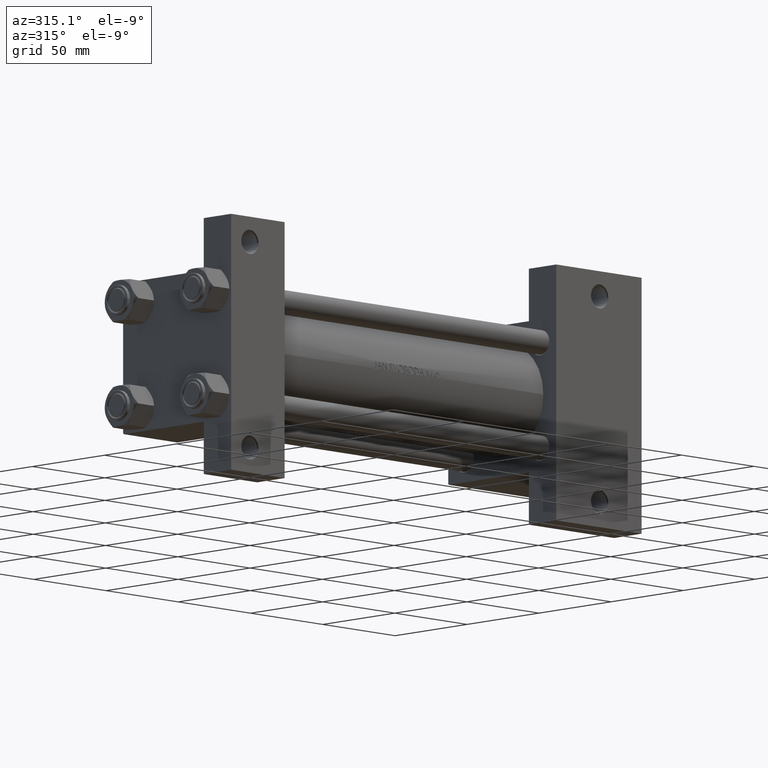
[diagram: clean part render]
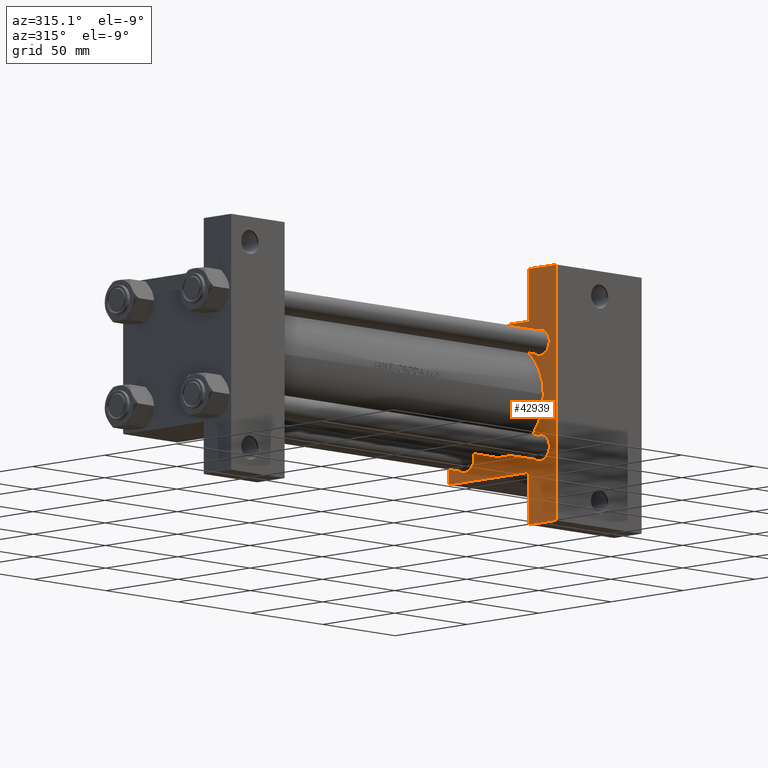
[diagram: same view with one face highlighted and labeled with its STEP entity id]
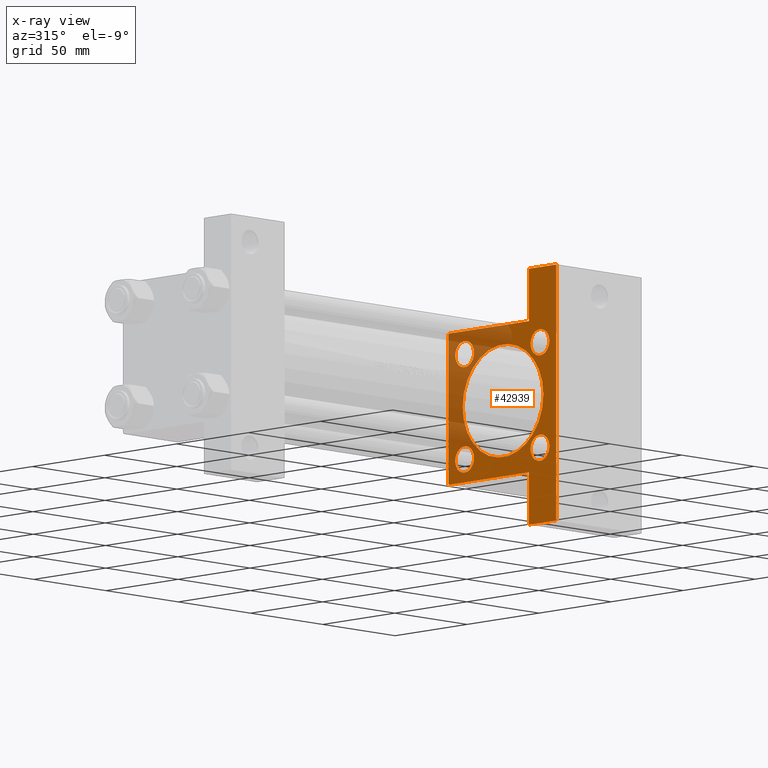
[diagram: x-ray of the same camera — body ghosted, the highlighted face saturated]
A machine part, auxiliary view. The second image highlights one B-rep face of the part: STEP entity #42939.
The next image is the same camera in x-ray: the body ghosted, the highlighted face saturated — about 27% of this face is hidden behind the body in this view.
In plain terms, the highlighted planar face has unit normal (-1, 0, 0).
Its self-contained STEP definition (entity closure, byte-faithful):
#875 = EDGE_CURVE ( 'NONE', #13380, #30213, #30874, .T. ) ;
#907 = AXIS2_PLACEMENT_3D ( 'NONE', #43818, #9851, #20264 ) ;
#1112 = CIRCLE ( 'NONE', #25695, 28.00000000000000000 ) ;
#1376 = VECTOR ( 'NONE', #14541, 1000.000000000000000 ) ;
#1690 = EDGE_LOOP ( 'NONE', ( #8330, #7272 ) ) ;
#2115 = CARTESIAN_POINT ( 'NONE',  ( 225.0000000000000000, 3.429011037612589276E-15, -28.50000000000000000 ) ) ;
#2484 = DIRECTION ( 'NONE',  ( 0.000000000000000000, -9.251858538542972814E-17, -1.000000000000000000 ) ) ;
#2498 = CIRCLE ( 'NONE', #907, 6.500000000000008882 ) ;
#2971 = CARTESIAN_POINT ( 'NONE',  ( 225.0000000000000000, 37.50000000000000000, 36.99999999999993605 ) ) ;
#2986 = VERTEX_POINT ( 'NONE', #46134 ) ;
#3007 = VERTEX_POINT ( 'NONE', #39443 ) ;
#3446 = EDGE_LOOP ( 'NONE', ( #42923, #11962 ) ) ;
#3787 = VECTOR ( 'NONE', #43563, 1000.000000000000000 ) ;
#4194 = EDGE_CURVE ( 'NONE', #29023, #44860, #2498, .T. ) ;
#4255 = DIRECTION ( 'NONE',  ( 1.000000000000000000, 0.000000000000000000, -0.000000000000000000 ) ) ;
#4349 = FACE_BOUND ( 'NONE', #1690, .T. ) ;
#4368 = ORIENTED_EDGE ( 'NONE', *, *, #28564, .T. ) ;
#4664 = CARTESIAN_POINT ( 'NONE',  ( 225.0000000000000000, 26.14999999999999858, -32.65000000000001279 ) ) ;
#5219 = CARTESIAN_POINT ( 'NONE',  ( 225.0000000000000000, -63.50000000000002842, -18.50000000000000000 ) ) ;
#5259 = CARTESIAN_POINT ( 'NONE',  ( 225.0000000000000000, -26.14999999999999147, 26.15000000000000924 ) ) ;
#5419 = EDGE_CURVE ( 'NONE', #2986, #6943, #39732, .T. ) ;
#6075 = AXIS2_PLACEMENT_3D ( 'NONE', #8445, #20081, #7952 ) ;
#6300 = AXIS2_PLACEMENT_3D ( 'NONE', #39633, #23516, #24250 ) ;
#6852 = VECTOR ( 'NONE', #42466, 1000.000000000000000 ) ;
#6894 = CARTESIAN_POINT ( 'NONE',  ( 225.0000000000000000, -37.50000000000000000, 36.99999999999995026 ) ) ;
#6943 = VERTEX_POINT ( 'NONE', #17885 ) ;
#7272 = ORIENTED_EDGE ( 'NONE', *, *, #4194, .T. ) ;
#7952 = DIRECTION ( 'NONE',  ( 0.000000000000000000, 0.000000000000000000, 1.000000000000000000 ) ) ;
#8326 = ORIENTED_EDGE ( 'NONE', *, *, #28071, .T. ) ;
#8330 = ORIENTED_EDGE ( 'NONE', *, *, #39391, .T. ) ;
#8445 = CARTESIAN_POINT ( 'NONE',  ( 225.0000000000000000, 26.14999999999999858, -26.15000000000000213 ) ) ;
#9026 = VERTEX_POINT ( 'NONE', #6894 ) ;
#9218 = VERTEX_POINT ( 'NONE', #34769 ) ;
#9360 = LINE ( 'NONE', #39614, #3787 ) ;
#9627 = DIRECTION ( 'NONE',  ( 1.000000000000000000, 0.000000000000000000, -0.000000000000000000 ) ) ;
#9851 = DIRECTION ( 'NONE',  ( 1.000000000000000000, 0.000000000000000000, -0.000000000000000000 ) ) ;
#9857 = CIRCLE ( 'NONE', #24881, 6.500000000000008882 ) ;
#10549 = AXIS2_PLACEMENT_3D ( 'NONE', #23568, #4255, #37983 ) ;
#10603 = DIRECTION ( 'NONE',  ( 1.000000000000000000, 0.000000000000000000, 0.000000000000000000 ) ) ;
#10786 = CARTESIAN_POINT ( 'NONE',  ( 225.0000000000000000, -63.50000000000002842, -18.50000000000000000 ) ) ;
#11962 = ORIENTED_EDGE ( 'NONE', *, *, #31559, .T. ) ;
#12401 = CARTESIAN_POINT ( 'NONE',  ( 225.0000000000000000, -36.99999999999997158, 37.49999999999997868 ) ) ;
#12481 = AXIS2_PLACEMENT_3D ( 'NONE', #37391, #10603, #24558 ) ;
#12824 = ORIENTED_EDGE ( 'NONE', *, *, #14911, .T. ) ;
#12888 = DIRECTION ( 'NONE',  ( -0.000000000000000000, 1.000000000000000000, -0.000000000000000000 ) ) ;
#13062 = CARTESIAN_POINT ( 'NONE',  ( 225.0000000000000000, 26.14999999999999858, -19.64999999999999503 ) ) ;
#13070 = EDGE_LOOP ( 'NONE', ( #48309, #12824 ) ) ;
#13380 = VERTEX_POINT ( 'NONE', #48942 ) ;
#13735 = EDGE_CURVE ( 'NONE', #6943, #2986, #31938, .T. ) ;
#14407 = LINE ( 'NONE', #40729, #34332 ) ;
#14541 = DIRECTION ( 'NONE',  ( 0.000000000000000000, 0.000000000000000000, -1.000000000000000000 ) ) ;
#14627 = ORIENTED_EDGE ( 'NONE', *, *, #875, .T. ) ;
#14911 = EDGE_CURVE ( 'NONE', #35921, #36636, #1112, .T. ) ;
#14971 = DIRECTION ( 'NONE',  ( 1.000000000000000000, 0.000000000000000000, -0.000000000000000000 ) ) ;
#14979 = FACE_BOUND ( 'NONE', #48711, .T. ) ;
#15235 = VERTEX_POINT ( 'NONE', #2971 ) ;
#15239 = LINE ( 'NONE', #15719, #39136 ) ;
#15403 = ORIENTED_EDGE ( 'NONE', *, *, #40790, .T. ) ;
#15567 = EDGE_CURVE ( 'NONE', #30213, #13380, #9857, .T. ) ;
#15702 = ORIENTED_EDGE ( 'NONE', *, *, #39801, .T. ) ;
#15719 = CARTESIAN_POINT ( 'NONE',  ( 225.0000000000000000, 37.24999999999996447, 37.24999999999996447 ) ) ;
#16355 = CARTESIAN_POINT ( 'NONE',  ( 225.0000000000000284, 63.50000000000000000, -18.50000000000000000 ) ) ;
#16719 = CARTESIAN_POINT ( 'NONE',  ( 225.0000000000000000, 0.000000000000000000, -0.5000000000000004441 ) ) ;
#16845 = LINE ( 'NONE', #35968, #17878 ) ;
#17448 = DIRECTION ( 'NONE',  ( 0.000000000000000000, 0.000000000000000000, -1.000000000000000000 ) ) ;
#17532 = EDGE_CURVE ( 'NONE', #39577, #9218, #46426, .T. ) ;
#17693 = LINE ( 'NONE', #32841, #43786 ) ;
#17878 = VECTOR ( 'NONE', #2484, 1000.000000000000000 ) ;
#17885 = CARTESIAN_POINT ( 'NONE',  ( 225.0000000000000000, -26.14999999999999147, -32.65000000000002700 ) ) ;
#18123 = DIRECTION ( 'NONE',  ( 0.000000000000000000, 1.000000000000000000, 0.000000000000000000 ) ) ;
#18451 = EDGE_LOOP ( 'NONE', ( #20278, #38785 ) ) ;
#18833 = EDGE_CURVE ( 'NONE', #37337, #38254, #27672, .T. ) ;
#18929 = DIRECTION ( 'NONE',  ( 0.000000000000000000, 0.000000000000000000, 1.000000000000000000 ) ) ;
#18956 = FACE_OUTER_BOUND ( 'NONE', #44848, .T. ) ;
#20041 = ORIENTED_EDGE ( 'NONE', *, *, #15567, .T. ) ;
#20081 = DIRECTION ( 'NONE',  ( 1.000000000000000000, 0.000000000000000000, -0.000000000000000000 ) ) ;
#20264 = DIRECTION ( 'NONE',  ( 0.000000000000000000, 0.000000000000000000, 1.000000000000000000 ) ) ;
#20278 = ORIENTED_EDGE ( 'NONE', *, *, #5419, .T. ) ;
#20870 = AXIS2_PLACEMENT_3D ( 'NONE', #34088, #14971, #29371 ) ;
#21010 = CARTESIAN_POINT ( 'NONE',  ( 225.0000000000000000, -37.24999999999997158, 37.24999999999997158 ) ) ;
#22379 = VERTEX_POINT ( 'NONE', #38587 ) ;
#22688 = FACE_BOUND ( 'NONE', #3446, .T. ) ;
#22928 = DIRECTION ( 'NONE',  ( -1.000000000000000000, -0.000000000000000000, 0.000000000000000000 ) ) ;
#23179 = FACE_BOUND ( 'NONE', #18451, .T. ) ;
#23516 = DIRECTION ( 'NONE',  ( 1.000000000000000000, 0.000000000000000000, -0.000000000000000000 ) ) ;
#23568 = CARTESIAN_POINT ( 'NONE',  ( 225.0000000000000000, -26.14999999999999147, -26.15000000000000924 ) ) ;
#23901 = AXIS2_PLACEMENT_3D ( 'NONE', #41519, #45480, #18929 ) ;
#24153 = VERTEX_POINT ( 'NONE', #39901 ) ;
#24250 = DIRECTION ( 'NONE',  ( 0.000000000000000000, 0.000000000000000000, 1.000000000000000000 ) ) ;
#24541 = LINE ( 'NONE', #16355, #43858 ) ;
#24558 = DIRECTION ( 'NONE',  ( 0.000000000000000000, 0.000000000000000000, -1.000000000000000000 ) ) ;
#24881 = AXIS2_PLACEMENT_3D ( 'NONE', #36892, #9627, #43583 ) ;
#25695 = AXIS2_PLACEMENT_3D ( 'NONE', #16719, #47482, #17448 ) ;
#26412 = FACE_BOUND ( 'NONE', #13070, .T. ) ;
#27286 = VERTEX_POINT ( 'NONE', #5219 ) ;
#27298 = VERTEX_POINT ( 'NONE', #12401 ) ;
#27672 = CIRCLE ( 'NONE', #6300, 6.499999999999995559 ) ;
#28071 = EDGE_CURVE ( 'NONE', #22379, #24153, #24541, .T. ) ;
#28481 = CARTESIAN_POINT ( 'NONE',  ( 225.0000000000000284, 63.50000000000000000, -37.50000000000000000 ) ) ;
#28564 = EDGE_CURVE ( 'NONE', #42316, #15235, #15239, .T. ) ;
#28858 = DIRECTION ( 'NONE',  ( 0.000000000000000000, -1.000000000000000000, -1.850371707708594316E-16 ) ) ;
#29023 = VERTEX_POINT ( 'NONE', #4664 ) ;
#29038 = VECTOR ( 'NONE', #39878, 1000.000000000000114 ) ;
#29371 = DIRECTION ( 'NONE',  ( 0.000000000000000000, 0.000000000000000000, 1.000000000000000000 ) ) ;
#29534 = EDGE_CURVE ( 'NONE', #42316, #27298, #17693, .T. ) ;
#29568 = VECTOR ( 'NONE', #36844, 1000.000000000000000 ) ;
#29820 = CIRCLE ( 'NONE', #6075, 6.500000000000008882 ) ;
#30125 = DIRECTION ( 'NONE',  ( 0.000000000000000000, 0.000000000000000000, 1.000000000000000000 ) ) ;
#30213 = VERTEX_POINT ( 'NONE', #45296 ) ;
#30796 = EDGE_CURVE ( 'NONE', #27286, #3007, #14407, .T. ) ;
#30874 = CIRCLE ( 'NONE', #40396, 6.500000000000008882 ) ;
#31308 = CARTESIAN_POINT ( 'NONE',  ( 225.0000000000000000, 37.50000000000000000, -37.50000000000000000 ) ) ;
#31388 = CARTESIAN_POINT ( 'NONE',  ( 225.0000000000000000, 0.000000000000000000, 27.50000000000000000 ) ) ;
#31534 = EDGE_CURVE ( 'NONE', #27286, #9218, #37829, .T. ) ;
#31559 = EDGE_CURVE ( 'NONE', #38254, #37337, #46219, .T. ) ;
#31938 = CIRCLE ( 'NONE', #10549, 6.500000000000008882 ) ;
#32841 = CARTESIAN_POINT ( 'NONE',  ( 225.0000000000000000, 37.50000000000000000, 37.49999999999999289 ) ) ;
#33152 = CARTESIAN_POINT ( 'NONE',  ( 225.0000000000000000, 37.50000000000000000, 37.49999999999999289 ) ) ;
#34088 = CARTESIAN_POINT ( 'NONE',  ( 225.0000000000000000, 26.14999999999999858, 26.15000000000000213 ) ) ;
#34332 = VECTOR ( 'NONE', #18123, 1000.000000000000000 ) ;
#34681 = AXIS2_PLACEMENT_3D ( 'NONE', #41295, #22928, #30125 ) ;
#34769 = CARTESIAN_POINT ( 'NONE',  ( 225.0000000000000000, -63.50000000000002842, -37.50000000000000000 ) ) ;
#34770 = CARTESIAN_POINT ( 'NONE',  ( 225.0000000000000000, 26.14999999999999858, 19.65000000000000568 ) ) ;
#35275 = ORIENTED_EDGE ( 'NONE', *, *, #29534, .F. ) ;
#35638 = ORIENTED_EDGE ( 'NONE', *, *, #44808, .T. ) ;
#35902 = LINE ( 'NONE', #21010, #29038 ) ;
#35912 = ORIENTED_EDGE ( 'NONE', *, *, #30796, .T. ) ;
#35921 = VERTEX_POINT ( 'NONE', #2115 ) ;
#35968 = CARTESIAN_POINT ( 'NONE',  ( 225.0000000000000000, -37.50000000000000000, 37.49999999999997868 ) ) ;
#36046 = CARTESIAN_POINT ( 'NONE',  ( 225.0000000000000000, 36.99999999999994316, 37.49999999999999289 ) ) ;
#36337 = ORIENTED_EDGE ( 'NONE', *, *, #17532, .T. ) ;
#36433 = EDGE_CURVE ( 'NONE', #9026, #3007, #16845, .T. ) ;
#36636 = VERTEX_POINT ( 'NONE', #31388 ) ;
#36844 = DIRECTION ( 'NONE',  ( 0.000000000000000000, 0.000000000000000000, -1.000000000000000000 ) ) ;
#36892 = CARTESIAN_POINT ( 'NONE',  ( 225.0000000000000000, -26.14999999999999147, 26.15000000000000924 ) ) ;
#37337 = VERTEX_POINT ( 'NONE', #43416 ) ;
#37391 = CARTESIAN_POINT ( 'NONE',  ( 225.0000000000000000, 0.000000000000000000, -0.5000000000000004441 ) ) ;
#37829 = LINE ( 'NONE', #10786, #29568 ) ;
#37848 = DIRECTION ( 'NONE',  ( 0.000000000000000000, 0.7071067811865474617, -0.7071067811865474617 ) ) ;
#37983 = DIRECTION ( 'NONE',  ( 0.000000000000000000, 0.000000000000000000, 1.000000000000000000 ) ) ;
#38254 = VERTEX_POINT ( 'NONE', #34770 ) ;
#38587 = CARTESIAN_POINT ( 'NONE',  ( 225.0000000000000000, 37.50000000000000000, -18.50000000000000355 ) ) ;
#38785 = ORIENTED_EDGE ( 'NONE', *, *, #13735, .T. ) ;
#39136 = VECTOR ( 'NONE', #37848, 1000.000000000000114 ) ;
#39391 = EDGE_CURVE ( 'NONE', #44860, #29023, #29820, .T. ) ;
#39443 = CARTESIAN_POINT ( 'NONE',  ( 225.0000000000000000, -37.50000000000000000, -18.50000000000000000 ) ) ;
#39577 = VERTEX_POINT ( 'NONE', #28481 ) ;
#39614 = CARTESIAN_POINT ( 'NONE',  ( 225.0000000000000284, 63.50000000000000000, -18.50000000000000000 ) ) ;
#39633 = CARTESIAN_POINT ( 'NONE',  ( 225.0000000000000000, 26.14999999999999858, 26.15000000000000213 ) ) ;
#39732 = CIRCLE ( 'NONE', #23901, 6.500000000000008882 ) ;
#39801 = EDGE_CURVE ( 'NONE', #9026, #27298, #35902, .T. ) ;
#39878 = DIRECTION ( 'NONE',  ( -0.000000000000000000, 0.7071067811865474617, 0.7071067811865474617 ) ) ;
#39901 = CARTESIAN_POINT ( 'NONE',  ( 225.0000000000000284, 63.50000000000000000, -18.50000000000000000 ) ) ;
#40396 = AXIS2_PLACEMENT_3D ( 'NONE', #5259, #43671, #46650 ) ;
#40729 = CARTESIAN_POINT ( 'NONE',  ( 225.0000000000000000, -63.50000000000002842, -18.50000000000000000 ) ) ;
#40790 = EDGE_CURVE ( 'NONE', #15235, #22379, #48523, .T. ) ;
#41280 = ORIENTED_EDGE ( 'NONE', *, *, #36433, .F. ) ;
#41295 = CARTESIAN_POINT ( 'NONE',  ( 225.0000000000000000, 0.000000000000000000, 0.000000000000000000 ) ) ;
#41519 = CARTESIAN_POINT ( 'NONE',  ( 225.0000000000000000, -26.14999999999999147, -26.15000000000000924 ) ) ;
#41840 = EDGE_CURVE ( 'NONE', #36636, #35921, #47319, .T. ) ;
#42316 = VERTEX_POINT ( 'NONE', #36046 ) ;
#42466 = DIRECTION ( 'NONE',  ( 0.000000000000000000, -1.000000000000000000, 0.000000000000000000 ) ) ;
#42923 = ORIENTED_EDGE ( 'NONE', *, *, #18833, .T. ) ;
#42939 = ADVANCED_FACE ( 'NONE', ( #14979, #22688, #4349, #23179, #26412, #18956 ), #48730, .T. ) ;
#43416 = CARTESIAN_POINT ( 'NONE',  ( 225.0000000000000000, 26.14999999999999858, 32.65000000000000568 ) ) ;
#43563 = DIRECTION ( 'NONE',  ( 0.000000000000000000, 0.000000000000000000, -1.000000000000000000 ) ) ;
#43583 = DIRECTION ( 'NONE',  ( 0.000000000000000000, 0.000000000000000000, 1.000000000000000000 ) ) ;
#43671 = DIRECTION ( 'NONE',  ( 1.000000000000000000, 0.000000000000000000, -0.000000000000000000 ) ) ;
#43786 = VECTOR ( 'NONE', #28858, 1000.000000000000000 ) ;
#43818 = CARTESIAN_POINT ( 'NONE',  ( 225.0000000000000000, 26.14999999999999858, -26.15000000000000213 ) ) ;
#43858 = VECTOR ( 'NONE', #12888, 1000.000000000000000 ) ;
#44543 = ORIENTED_EDGE ( 'NONE', *, *, #31534, .F. ) ;
#44808 = EDGE_CURVE ( 'NONE', #24153, #39577, #9360, .T. ) ;
#44848 = EDGE_LOOP ( 'NONE', ( #35275, #4368, #15403, #8326, #35638, #36337, #44543, #35912, #41280, #15702 ) ) ;
#44860 = VERTEX_POINT ( 'NONE', #13062 ) ;
#45296 = CARTESIAN_POINT ( 'NONE',  ( 225.0000000000000000, -26.14999999999999147, 19.65000000000000213 ) ) ;
#45480 = DIRECTION ( 'NONE',  ( 1.000000000000000000, 0.000000000000000000, -0.000000000000000000 ) ) ;
#46134 = CARTESIAN_POINT ( 'NONE',  ( 225.0000000000000000, -26.14999999999999147, -19.65000000000000213 ) ) ;
#46219 = CIRCLE ( 'NONE', #20870, 6.499999999999995559 ) ;
#46426 = LINE ( 'NONE', #31308, #6852 ) ;
#46650 = DIRECTION ( 'NONE',  ( 0.000000000000000000, 0.000000000000000000, 1.000000000000000000 ) ) ;
#47319 = CIRCLE ( 'NONE', #12481, 28.00000000000000000 ) ;
#47482 = DIRECTION ( 'NONE',  ( 1.000000000000000000, 0.000000000000000000, 0.000000000000000000 ) ) ;
#48309 = ORIENTED_EDGE ( 'NONE', *, *, #41840, .T. ) ;
#48523 = LINE ( 'NONE', #33152, #1376 ) ;
#48711 = EDGE_LOOP ( 'NONE', ( #14627, #20041 ) ) ;
#48730 = PLANE ( 'NONE',  #34681 ) ;
#48942 = CARTESIAN_POINT ( 'NONE',  ( 225.0000000000000000, -26.14999999999999147, 32.65000000000001990 ) ) ;